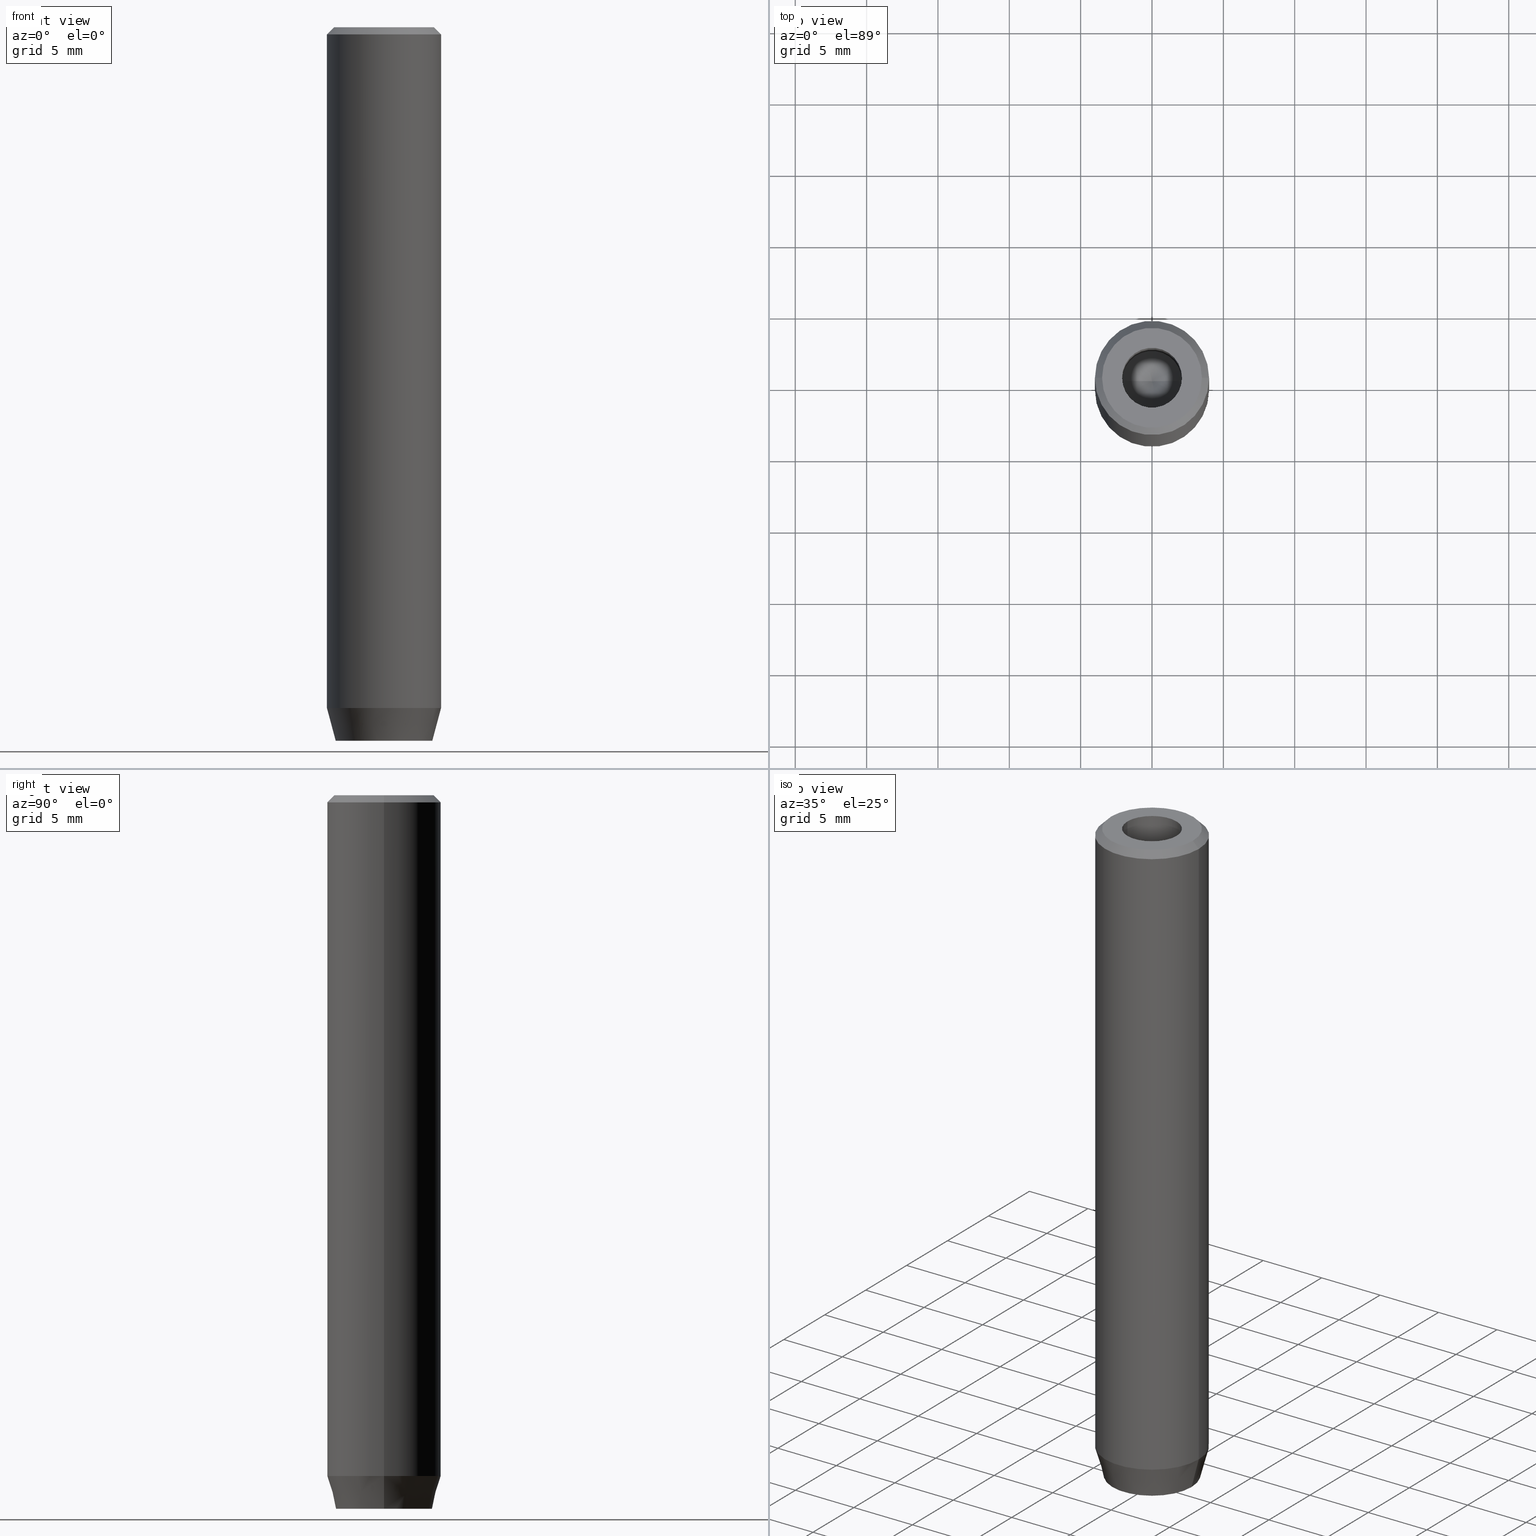
[diagram: canonical four-view strip — front | top / right | iso, engineering-drawing reading convention]
A machine part, canonical four-view strip (front | top / right | iso — engineering-drawing reading convention). The complete STEP part file that produces these views, byte-faithful:
ISO-10303-21;
HEADER;
FILE_DESCRIPTION (( 'STEP AP203' ),
    '1' );
FILE_NAME ('fa51.STEP',
    '2024-01-02T23:09:41',
    ( '' ),
    ( '' ),
    'SwSTEP 2.0',
    'SolidWorks 2019',
    '' );
FILE_SCHEMA (( 'CONFIG_CONTROL_DESIGN' ));
ENDSEC;

DATA;
#1 = SHAPE_DEFINITION_REPRESENTATION ( #333, #303 ) ;
#2 = AXIS2_PLACEMENT_3D ( 'NONE', #121, #310, #35 ) ;
#3 = CARTESIAN_POINT ( 'NONE',  ( 0.000000000000000000, 2.309401076758503812, -47.20000000000000284 ) ) ;
#4 = VECTOR ( 'NONE', #56, 1000.000000000000114 ) ;
#5 = ORIENTED_EDGE ( 'NONE', *, *, #295, .F. ) ;
#6 = DIRECTION ( 'NONE',  ( -0.000000000000000000, -0.000000000000000000, -1.000000000000000000 ) ) ;
#7 = VERTEX_POINT ( 'NONE', #245 ) ;
#8 = DATE_AND_TIME ( #511, #347 ) ;
#9 = DIRECTION ( 'NONE',  ( 0.8660254037844385966, -0.4999999999999999445, 0.000000000000000000 ) ) ;
#10 = ORIENTED_EDGE ( 'NONE', *, *, #457, .F. ) ;
#11 = PERSON_AND_ORGANIZATION ( #130, #546 ) ;
#12 = CARTESIAN_POINT ( 'NONE',  ( 4.000000000000000000, 0.000000000000000000, -47.70000000000000284 ) ) ;
#13 = VERTEX_POINT ( 'NONE', #345 ) ;
#14 = CIRCLE ( 'NONE', #214, 3.383716857408417766 ) ;
#15 = DIRECTION ( 'NONE',  ( -1.000000000000000000, 0.000000000000000000, -0.000000000000000000 ) ) ;
#16 = EDGE_CURVE ( 'NONE', #490, #292, #199, .T. ) ;
#17 = DIRECTION ( 'NONE',  ( -1.000000000000000000, 0.000000000000000000, -0.000000000000000000 ) ) ;
#18 = ORIENTED_EDGE ( 'NONE', *, *, #321, .F. ) ;
#19 = PLANE ( 'NONE',  #115 ) ;
#20 = ORIENTED_EDGE ( 'NONE', *, *, #447, .T. ) ;
#21 = VECTOR ( 'NONE', #408, 1000.000000000000000 ) ;
#22 = CARTESIAN_POINT ( 'NONE',  ( -2.099999999999998757, 2.571758278209439985E-16, -1.990051048614449116E-16 ) ) ;
#23 = ORIENTED_EDGE ( 'NONE', *, *, #143, .F. ) ;
#24 = DIRECTION ( 'NONE',  ( 0.000000000000000000, 0.000000000000000000, -1.000000000000000000 ) ) ;
#25 = ORIENTED_EDGE ( 'NONE', *, *, #252, .T. ) ;
#26 = ADVANCED_FACE ( 'NONE', ( #195 ), #564, .F. ) ;
#27 = APPROVAL_STATUS ( 'not_yet_approved' ) ;
#28 = ADVANCED_FACE ( 'NONE', ( #519 ), #258, .T. ) ;
#29 = DIRECTION ( 'NONE',  ( -5.633679745264339711E-16, -1.000000000000000000, 0.000000000000000000 ) ) ;
#30 = VECTOR ( 'NONE', #527, 1000.000000000000000 ) ;
#31 = DIRECTION ( 'NONE',  ( -0.000000000000000000, -0.000000000000000000, 1.000000000000000000 ) ) ;
#32 = CC_DESIGN_SECURITY_CLASSIFICATION ( #224, ( #374 ) ) ;
#33 = DIRECTION ( 'NONE',  ( -0.000000000000000000, -0.000000000000000000, 1.000000000000000000 ) ) ;
#34 = DIRECTION ( 'NONE',  ( -0.000000000000000000, -0.000000000000000000, 1.000000000000000000 ) ) ;
#35 = DIRECTION ( 'NONE',  ( 1.000000000000000000, 0.000000000000000000, 0.000000000000000000 ) ) ;
#36 = CARTESIAN_POINT ( 'NONE',  ( 0.000000000000000000, 0.000000000000000000, 0.000000000000000000 ) ) ;
#37 = ORIENTED_EDGE ( 'NONE', *, *, #304, .F. ) ;
#38 = EDGE_CURVE ( 'NONE', #292, #435, #440, .T. ) ;
#39 = CARTESIAN_POINT ( 'NONE',  ( 2.000000000000000888, -1.154700538379252572, -50.00000000000000000 ) ) ;
#40 = CONICAL_SURFACE ( 'NONE', #356, 2.099999999999996980, 1.029744258676653201 ) ;
#41 = LINE ( 'NONE', #211, #325 ) ;
#42 = AXIS2_PLACEMENT_3D ( 'NONE', #379, #250, #434 ) ;
#43 = EDGE_CURVE ( 'NONE', #251, #407, #489, .T. ) ;
#44 = CALENDAR_DATE ( 2024, 3, 1 ) ;
#45 = DIRECTION ( 'NONE',  ( -0.000000000000000000, -0.000000000000000000, -1.000000000000000000 ) ) ;
#46 = ORIENTED_EDGE ( 'NONE', *, *, #203, .F. ) ;
#47 = APPROVAL_STATUS ( 'not_yet_approved' ) ;
#48 = FACE_OUTER_BOUND ( 'NONE', #414, .T. ) ;
#49 = EDGE_CURVE ( 'NONE', #197, #475, #401, .T. ) ;
#50 = ORIENTED_EDGE ( 'NONE', *, *, #445, .F. ) ;
#51 = DIRECTION ( 'NONE',  ( -0.000000000000000000, -0.000000000000000000, 1.000000000000000000 ) ) ;
#52 = VECTOR ( 'NONE', #260, 1000.000000000000000 ) ;
#53 = ORIENTED_EDGE ( 'NONE', *, *, #583, .T. ) ;
#54 = APPROVAL_DATE_TIME ( #492, #189 ) ;
#55 = CARTESIAN_POINT ( 'NONE',  ( 0.000000000000000000, 0.000000000000000000, 0.000000000000000000 ) ) ;
#56 = DIRECTION ( 'NONE',  ( -0.8660254037844388186, -0.4999999999999996114, 0.000000000000000000 ) ) ;
#57 = EDGE_LOOP ( 'NONE', ( #430, #20, #65, #247 ) ) ;
#58 = ADVANCED_FACE ( 'NONE', ( #573 ), #207, .F. ) ;
#59 = DIRECTION ( 'NONE',  ( -0.000000000000000000, -0.000000000000000000, 1.000000000000000000 ) ) ;
#60 = ORIENTED_EDGE ( 'NONE', *, *, #203, .T. ) ;
#61 = AXIS2_PLACEMENT_3D ( 'NONE', #36, #496, #396 ) ;
#62 = AXIS2_PLACEMENT_3D ( 'NONE', #395, #354, #119 ) ;
#63 = CC_DESIGN_DATE_AND_TIME_ASSIGNMENT ( #8, #270, ( #224 ) ) ;
#64 = CARTESIAN_POINT ( 'NONE',  ( 1.000000000000000444, 1.732050807568877637, -50.00000000000000000 ) ) ;
#65 = ORIENTED_EDGE ( 'NONE', *, *, #219, .T. ) ;
#66 = FACE_OUTER_BOUND ( 'NONE', #75, .T. ) ;
#67 = EDGE_LOOP ( 'NONE', ( #254, #329, #343, #25 ) ) ;
#68 = PLANE ( 'NONE',  #500 ) ;
#69 = ORIENTED_EDGE ( 'NONE', *, *, #330, .F. ) ;
#70 = DIRECTION ( 'NONE',  ( -0.000000000000000000, -0.000000000000000000, 1.000000000000000000 ) ) ;
#71 = VERTEX_POINT ( 'NONE', #80 ) ;
#72 = EDGE_CURVE ( 'NONE', #185, #117, #534, .T. ) ;
#73 = EDGE_CURVE ( 'NONE', #213, #129, #570, .T. ) ;
#74 = APPLICATION_PROTOCOL_DEFINITION ( 'international standard', 'config_control_design', 1994, #478 ) ;
#75 = EDGE_LOOP ( 'NONE', ( #561, #340 ) ) ;
#76 = CARTESIAN_POINT ( 'NONE',  ( -1.000000000000000222, -1.732050807568877637, -50.00000000000000000 ) ) ;
#77 = LINE ( 'NONE', #312, #521 ) ;
#78 = CIRCLE ( 'NONE', #88, 4.000000000000000000 ) ;
#79 = DIRECTION ( 'NONE',  ( 1.000000000000000000, 0.000000000000000000, 0.000000000000000000 ) ) ;
#80 = CARTESIAN_POINT ( 'NONE',  ( 2.168404344971008868E-16, -2.309401076758503812, -50.00000000000000000 ) ) ;
#81 = ORIENTED_EDGE ( 'NONE', *, *, #283, .T. ) ;
#82 = PERSON_AND_ORGANIZATION ( #130, #546 ) ;
#83 = DIRECTION ( 'NONE',  ( 0.000000000000000000, -0.000000000000000000, 1.000000000000000000 ) ) ;
#84 = CARTESIAN_POINT ( 'NONE',  ( -4.000000000000000000, 4.898587196589412829E-16, -0.5000000000000108802 ) ) ;
#85 = PRODUCT_DEFINITION ( 'NEZN�M�', '', #374, #248 ) ;
#86 = AXIS2_PLACEMENT_3D ( 'NONE', #98, #91, #375 ) ;
#87 = DIRECTION ( 'NONE',  ( -0.2588190451025210725, 3.169619151431769255E-17, 0.9659258262890680902 ) ) ;
#88 = AXIS2_PLACEMENT_3D ( 'NONE', #429, #344, #110 ) ;
#89 = ORIENTED_EDGE ( 'NONE', *, *, #349, .T. ) ;
#90 = PERSON_AND_ORGANIZATION_ROLE ( 'design_supplier' ) ;
#91 = DIRECTION ( 'NONE',  ( 0.000000000000000000, 0.000000000000000000, -1.000000000000000000 ) ) ;
#92 = ORIENTED_EDGE ( 'NONE', *, *, #186, .T. ) ;
#93 = EDGE_CURVE ( 'NONE', #129, #475, #41, .T. ) ;
#94 = CYLINDRICAL_SURFACE ( 'NONE', #142, 2.099999999999997868 ) ;
#95 = FACE_OUTER_BOUND ( 'NONE', #516, .T. ) ;
#96 = AXIS2_PLACEMENT_3D ( 'NONE', #424, #386, #296 ) ;
#97 = VERTEX_POINT ( 'NONE', #267 ) ;
#98 = CARTESIAN_POINT ( 'NONE',  ( 0.000000000000000000, 0.000000000000000000, 0.000000000000000000 ) ) ;
#99 = ORIENTED_EDGE ( 'NONE', *, *, #509, .T. ) ;
#100 = EDGE_CURVE ( 'NONE', #484, #251, #77, .T. ) ;
#101 = CARTESIAN_POINT ( 'NONE',  ( -1.999999999999997780, 1.154700538379253238, -50.00000000000000000 ) ) ;
#102 = VERTEX_POINT ( 'NONE', #361 ) ;
#103 = CC_DESIGN_PERSON_AND_ORGANIZATION_ASSIGNMENT ( #183, #454, ( #374 ) ) ;
#104 = DIRECTION ( 'NONE',  ( -0.000000000000000000, -0.000000000000000000, 1.000000000000000000 ) ) ;
#105 = CARTESIAN_POINT ( 'NONE',  ( 0.000000000000000000, 0.000000000000000000, 0.000000000000000000 ) ) ;
#106 = CIRCLE ( 'NONE', #170, 4.000000000000000000 ) ;
#107 = AXIS2_PLACEMENT_3D ( 'NONE', #495, #31, #255 ) ;
#108 = DIRECTION ( 'NONE',  ( 1.000000000000000000, 0.000000000000000000, 0.000000000000000000 ) ) ;
#109 = EDGE_LOOP ( 'NONE', ( #223, #314, #420, #92, #542, #112 ) ) ;
#110 = DIRECTION ( 'NONE',  ( 1.000000000000000000, 0.000000000000000000, 0.000000000000000000 ) ) ;
#111 = EDGE_CURVE ( 'NONE', #251, #13, #131, .T. ) ;
#112 = ORIENTED_EDGE ( 'NONE', *, *, #43, .T. ) ;
#113 = FACE_BOUND ( 'NONE', #552, .T. ) ;
#114 = EDGE_LOOP ( 'NONE', ( #18, #157, #243, #10 ) ) ;
#115 = AXIS2_PLACEMENT_3D ( 'NONE', #565, #24, #15 ) ;
#116 = VECTOR ( 'NONE', #536, 1000.000000000000000 ) ;
#117 = VERTEX_POINT ( 'NONE', #84 ) ;
#118 = ADVANCED_FACE ( 'NONE', ( #172 ), #578, .F. ) ;
#119 = DIRECTION ( 'NONE',  ( 1.000000000000000000, 0.000000000000000000, 0.000000000000000000 ) ) ;
#120 = DIRECTION ( 'NONE',  ( -0.000000000000000000, 0.000000000000000000, -1.000000000000000000 ) ) ;
#121 = CARTESIAN_POINT ( 'NONE',  ( 0.000000000000000000, 0.000000000000000000, 0.000000000000000000 ) ) ;
#122 = CARTESIAN_POINT ( 'NONE',  ( -4.000000000000000000, 4.898587196589412829E-16, -47.70000000000000284 ) ) ;
#123 = VECTOR ( 'NONE', #523, 1000.000000000000000 ) ;
#124 = CARTESIAN_POINT ( 'NONE',  ( 0.000000000000000000, 0.000000000000000000, -47.70000000000000284 ) ) ;
#125 = ADVANCED_FACE ( 'NONE', ( #262 ), #210, .F. ) ;
#126 = FACE_BOUND ( 'NONE', #139, .T. ) ;
#127 = CARTESIAN_POINT ( 'NONE',  ( 2.168404344971008868E-16, -2.309401076758503812, -47.20000000000000284 ) ) ;
#128 = CARTESIAN_POINT ( 'NONE',  ( 2.000000000000000888, 0.000000000000000000, -50.00000000000000000 ) ) ;
#129 = VERTEX_POINT ( 'NONE', #315 ) ;
#130 = PERSON ( 'NEUR�EN�', 'NEUR�EN�', 'NEUR�EN�', ('NEUR�EN�'), ('NEUR�EN�'), ('NEUR�EN�') ) ;
#131 = LINE ( 'NONE', #498, #52 ) ;
#132 = PERSON_AND_ORGANIZATION ( #130, #546 ) ;
#133 = AXIS2_PLACEMENT_3D ( 'NONE', #464, #326, #222 ) ;
#134 = LINE ( 'NONE', #234, #432 ) ;
#135 = AXIS2_PLACEMENT_3D ( 'NONE', #124, #357, #488 ) ;
#136 = EDGE_LOOP ( 'NONE', ( #549, #332, #337, #46 ) ) ;
#137 = DIRECTION ( 'NONE',  ( -0.000000000000000000, -0.000000000000000000, 1.000000000000000000 ) ) ;
#138 = DIRECTION ( 'NONE',  ( -0.5000000000000001110, 0.8660254037844385966, 0.000000000000000000 ) ) ;
#139 = EDGE_LOOP ( 'NONE', ( #193, #240 ) ) ;
#140 = APPROVAL_DATE_TIME ( #405, #532 ) ;
#141 = DIRECTION ( 'NONE',  ( 0.2588190451025210725, 0.000000000000000000, 0.9659258262890680902 ) ) ;
#142 = AXIS2_PLACEMENT_3D ( 'NONE', #551, #51, #146 ) ;
#143 = EDGE_CURVE ( 'NONE', #7, #480, #306, .T. ) ;
#144 = VECTOR ( 'NONE', #263, 1000.000000000000000 ) ;
#145 = VERTEX_POINT ( 'NONE', #537 ) ;
#146 = DIRECTION ( 'NONE',  ( 1.000000000000000000, 0.000000000000000000, 0.000000000000000000 ) ) ;
#147 = ORIENTED_EDGE ( 'NONE', *, *, #382, .F. ) ;
#148 = CARTESIAN_POINT ( 'NONE',  ( -3.370670652075219192E-15, 0.000000000000000000, -13.76180729995787644 ) ) ;
#149 = ORIENTED_EDGE ( 'NONE', *, *, #445, .T. ) ;
#150 = FACE_OUTER_BOUND ( 'NONE', #109, .T. ) ;
#151 = LOCAL_TIME ( 0, 9, 41.00000000000000000, #277 ) ;
#152 = VERTEX_POINT ( 'NONE', #444 ) ;
#153 = VECTOR ( 'NONE', #355, 1000.000000000000000 ) ;
#154 = CARTESIAN_POINT ( 'NONE',  ( -3.499999999999989342, 0.000000000000000000, 0.000000000000000000 ) ) ;
#155 = CARTESIAN_POINT ( 'NONE',  ( 1.000000000000000444, 1.732050807568877637, -47.20000000000000284 ) ) ;
#156 = CARTESIAN_POINT ( 'NONE',  ( 0.000000000000000000, 0.000000000000000000, -47.70000000000000284 ) ) ;
#157 = ORIENTED_EDGE ( 'NONE', *, *, #93, .T. ) ;
#158 = CARTESIAN_POINT ( 'NONE',  ( 0.000000000000000000, 2.309401076758503812, -50.00000000000000000 ) ) ;
#159 = ORIENTED_EDGE ( 'NONE', *, *, #73, .T. ) ;
#160 = EDGE_CURVE ( 'NONE', #97, #185, #168, .T. ) ;
#161 = APPROVAL_PERSON_ORGANIZATION ( #82, #189, #571 ) ;
#162 = CALENDAR_DATE ( 2024, 3, 1 ) ;
#163 = CARTESIAN_POINT ( 'NONE',  ( 2.000000000000000888, 0.000000000000000000, -47.20000000000000284 ) ) ;
#164 = UNCERTAINTY_MEASURE_WITH_UNIT (LENGTH_MEASURE( 1.000000000000000082E-05 ), #299, 'distance_accuracy_value', 'NONE');
#165 = CC_DESIGN_PERSON_AND_ORGANIZATION_ASSIGNMENT ( #132, #502, ( #85 ) ) ;
#166 = DIRECTION ( 'NONE',  ( -0.000000000000000000, -0.000000000000000000, 1.000000000000000000 ) ) ;
#167 = EDGE_CURVE ( 'NONE', #97, #102, #14, .T. ) ;
#168 = LINE ( 'NONE', #122, #441 ) ;
#169 = EDGE_LOOP ( 'NONE', ( #53, #465, #280, #300 ) ) ;
#170 = AXIS2_PLACEMENT_3D ( 'NONE', #156, #70, #341 ) ;
#171 = CARTESIAN_POINT ( 'NONE',  ( 0.000000000000000000, 2.309401076758503812, -47.20000000000000284 ) ) ;
#172 = FACE_OUTER_BOUND ( 'NONE', #411, .T. ) ;
#173 = EDGE_CURVE ( 'NONE', #152, #557, #449, .T. ) ;
#174 = DIRECTION ( 'NONE',  ( 0.8660254037844388186, 0.4999999999999996669, 0.000000000000000000 ) ) ;
#175 = CARTESIAN_POINT ( 'NONE',  ( -1.999999999999998224, 1.126735949052866956E-15, -47.20000000000000284 ) ) ;
#176 = ADVANCED_FACE ( 'NONE', ( #126, #311 ), #494, .T. ) ;
#177 = DIRECTION ( 'NONE',  ( -0.000000000000000000, -0.000000000000000000, -1.000000000000000000 ) ) ;
#178 = CIRCLE ( 'NONE', #107, 3.383716857408417766 ) ;
#179 = COORDINATED_UNIVERSAL_TIME_OFFSET ( 1, 0, .AHEAD. ) ;
#180 = VECTOR ( 'NONE', #45, 1000.000000000000000 ) ;
#181 = LINE ( 'NONE', #554, #200 ) ;
#182 = ORIENTED_EDGE ( 'NONE', *, *, #283, .F. ) ;
#183 = PERSON_AND_ORGANIZATION ( #130, #546 ) ;
#184 = CARTESIAN_POINT ( 'NONE',  ( 0.9999999999999997780, -1.732050807568878747, -47.20000000000000284 ) ) ;
#185 = VERTEX_POINT ( 'NONE', #230 ) ;
#186 = EDGE_CURVE ( 'NONE', #435, #484, #556, .T. ) ;
#187 = CARTESIAN_POINT ( 'NONE',  ( 0.000000000000000000, 0.000000000000000000, -1.990051048614449116E-16 ) ) ;
#188 = DATE_AND_TIME ( #44, #289 ) ;
#189 = APPROVAL ( #27, 'NEUR�EN�' ) ;
#190 = FACE_OUTER_BOUND ( 'NONE', #57, .T. ) ;
#191 = CIRCLE ( 'NONE', #581, 2.099999999999996980 ) ;
#192 = AXIS2_PLACEMENT_3D ( 'NONE', #529, #204, #108 ) ;
#193 = ORIENTED_EDGE ( 'NONE', *, *, #436, .F. ) ;
#194 = DIRECTION ( 'NONE',  ( 1.000000000000000000, 0.000000000000000000, 0.000000000000000000 ) ) ;
#195 = FACE_OUTER_BOUND ( 'NONE', #67, .T. ) ;
#196 = FACE_OUTER_BOUND ( 'NONE', #282, .T. ) ;
#197 = VERTEX_POINT ( 'NONE', #12 ) ;
#198 = CYLINDRICAL_SURFACE ( 'NONE', #42, 4.000000000000000000 ) ;
#199 = LINE ( 'NONE', #531, #225 ) ;
#200 = VECTOR ( 'NONE', #141, 1000.000000000000114 ) ;
#201 = DIRECTION ( 'NONE',  ( 0.4999999999999996669, -0.8660254037844388186, 0.000000000000000000 ) ) ;
#202 = ORIENTED_EDGE ( 'NONE', *, *, #38, .F. ) ;
#203 = EDGE_CURVE ( 'NONE', #102, #197, #181, .T. ) ;
#204 = DIRECTION ( 'NONE',  ( -0.000000000000000000, -0.000000000000000000, 1.000000000000000000 ) ) ;
#205 = ORIENTED_EDGE ( 'NONE', *, *, #447, .F. ) ;
#206 = LINE ( 'NONE', #448, #116 ) ;
#207 = PLANE ( 'NONE',  #335 ) ;
#208 = AXIS2_PLACEMENT_3D ( 'NONE', #253, #209, #79 ) ;
#209 = DIRECTION ( 'NONE',  ( -0.000000000000000000, -0.000000000000000000, 1.000000000000000000 ) ) ;
#210 = PLANE ( 'NONE',  #238 ) ;
#211 = CARTESIAN_POINT ( 'NONE',  ( 3.499999999999989342, 4.286263797015722790E-16, 0.000000000000000000 ) ) ;
#212 = DIRECTION ( 'NONE',  ( -0.000000000000000000, -0.000000000000000000, 1.000000000000000000 ) ) ;
#213 = VERTEX_POINT ( 'NONE', #371 ) ;
#214 = AXIS2_PLACEMENT_3D ( 'NONE', #538, #34, #398 ) ;
#215 = APPROVAL_PERSON_ORGANIZATION ( #547, #532, #507 ) ;
#216 = CARTESIAN_POINT ( 'NONE',  ( 2.000000000000000888, 1.154700538379251462, -47.20000000000000284 ) ) ;
#217 = DIRECTION ( 'NONE',  ( -0.8660254037844387076, 0.5000000000000001110, 0.000000000000000000 ) ) ;
#218 = PERSON_AND_ORGANIZATION_ROLE ( 'classification_officer' ) ;
#219 = EDGE_CURVE ( 'NONE', #370, #557, #402, .T. ) ;
#220 = DIRECTION ( 'NONE',  ( 1.000000000000000000, 0.000000000000000000, 0.000000000000000000 ) ) ;
#221 = ORIENTED_EDGE ( 'NONE', *, *, #265, .F. ) ;
#222 = DIRECTION ( 'NONE',  ( 1.000000000000000000, 0.000000000000000000, 0.000000000000000000 ) ) ;
#223 = ORIENTED_EDGE ( 'NONE', *, *, #295, .T. ) ;
#224 = SECURITY_CLASSIFICATION ( '', '', #273 ) ;
#225 = VECTOR ( 'NONE', #385, 1000.000000000000000 ) ;
#226 = DIRECTION ( 'NONE',  ( 5.633679745264339711E-16, 1.000000000000000000, 0.000000000000000000 ) ) ;
#227 = EDGE_LOOP ( 'NONE', ( #486, #545, #504 ) ) ;
#228 = ADVANCED_FACE ( 'NONE', ( #95 ), #510, .T. ) ;
#229 = PERSON_AND_ORGANIZATION ( #130, #546 ) ;
#230 = CARTESIAN_POINT ( 'NONE',  ( -4.000000000000000000, 4.898587196589412829E-16, -47.70000000000000284 ) ) ;
#231 = ORIENTED_EDGE ( 'NONE', *, *, #49, .T. ) ;
#232 = ADVANCED_FACE ( 'NONE', ( #514 ), #316, .T. ) ;
#233 = DATE_AND_TIME ( #585, #151 ) ;
#234 = CARTESIAN_POINT ( 'NONE',  ( -1.000000000000000444, 1.732050807568877637, -47.20000000000000284 ) ) ;
#235 = ORIENTED_EDGE ( 'NONE', *, *, #304, .T. ) ;
#236 = ADVANCED_FACE ( 'NONE', ( #190 ), #94, .F. ) ;
#237 = CARTESIAN_POINT ( 'NONE',  ( 0.000000000000000000, 0.000000000000000000, -12.50000000000000000 ) ) ;
#238 = AXIS2_PLACEMENT_3D ( 'NONE', #359, #541, #29 ) ;
#239 = VECTOR ( 'NONE', #59, 1000.000000000000000 ) ;
#240 = ORIENTED_EDGE ( 'NONE', *, *, #219, .F. ) ;
#241 = APPLICATION_CONTEXT ( 'configuration controlled 3d designs of mechanical parts and assemblies' ) ;
#242 = FACE_OUTER_BOUND ( 'NONE', #462, .T. ) ;
#243 = ORIENTED_EDGE ( 'NONE', *, *, #380, .F. ) ;
#244 = DIRECTION ( 'NONE',  ( 1.000000000000000000, 0.000000000000000000, 0.000000000000000000 ) ) ;
#245 = CARTESIAN_POINT ( 'NONE',  ( 2.000000000000000888, 1.154700538379251462, -50.00000000000000000 ) ) ;
#246 = CARTESIAN_POINT ( 'NONE',  ( 2.000000000000000888, -1.154700538379252572, -47.20000000000000284 ) ) ;
#247 = ORIENTED_EDGE ( 'NONE', *, *, #173, .F. ) ;
#248 = DESIGN_CONTEXT ( 'detailed design', #478, 'design' ) ;
#249 = VECTOR ( 'NONE', #226, 1000.000000000000000 ) ;
#250 = DIRECTION ( 'NONE',  ( -0.000000000000000000, -0.000000000000000000, 1.000000000000000000 ) ) ;
#251 = VERTEX_POINT ( 'NONE', #512 ) ;
#252 = EDGE_CURVE ( 'NONE', #490, #437, #274, .T. ) ;
#253 = CARTESIAN_POINT ( 'NONE',  ( 0.000000000000000000, 0.000000000000000000, -47.70000000000000284 ) ) ;
#254 = ORIENTED_EDGE ( 'NONE', *, *, #358, .T. ) ;
#255 = DIRECTION ( 'NONE',  ( 1.000000000000000000, 0.000000000000000000, 0.000000000000000000 ) ) ;
#256 = CARTESIAN_POINT ( 'NONE',  ( 0.000000000000000000, 0.000000000000000000, 0.000000000000000000 ) ) ;
#257 =( GEOMETRIC_REPRESENTATION_CONTEXT ( 3 ) GLOBAL_UNCERTAINTY_ASSIGNED_CONTEXT ( ( #164 ) ) GLOBAL_UNIT_ASSIGNED_CONTEXT ( ( #299, #352, #350 ) ) REPRESENTATION_CONTEXT ( 'NONE', 'WORKASPACE' ) );
#258 = CONICAL_SURFACE ( 'NONE', #472, 3.499999999999989342, 0.7853981633974482790 ) ;
#259 = DIRECTION ( 'NONE',  ( -0.8571673007021116675, 1.049727191138617833E-16, 0.5150380749100552658 ) ) ;
#260 = DIRECTION ( 'NONE',  ( -0.000000000000000000, -0.000000000000000000, -1.000000000000000000 ) ) ;
#261 = DIRECTION ( 'NONE',  ( -0.8660254037844387076, 0.5000000000000001110, 0.000000000000000000 ) ) ;
#262 = FACE_OUTER_BOUND ( 'NONE', #389, .T. ) ;
#263 = DIRECTION ( 'NONE',  ( 0.000000000000000000, -1.000000000000000000, 0.000000000000000000 ) ) ;
#264 = ORIENTED_EDGE ( 'NONE', *, *, #457, .T. ) ;
#265 = EDGE_CURVE ( 'NONE', #451, #152, #461, .T. ) ;
#266 = CIRCLE ( 'NONE', #438, 2.099999999999998757 ) ;
#267 = CARTESIAN_POINT ( 'NONE',  ( -3.383716857408417766, 4.521222607617785469E-16, -50.00000000000000000 ) ) ;
#268 = ORIENTED_EDGE ( 'NONE', *, *, #380, .T. ) ;
#269 = ADVANCED_FACE ( 'NONE', ( #48 ), #328, .F. ) ;
#270 = DATE_TIME_ROLE ( 'classification_date' ) ;
#271 = DIRECTION ( 'NONE',  ( -0.8660254037844388186, -0.4999999999999996114, 0.000000000000000000 ) ) ;
#272 = ORIENTED_EDGE ( 'NONE', *, *, #111, .T. ) ;
#273 = SECURITY_CLASSIFICATION_LEVEL ( 'unclassified' ) ;
#274 = LINE ( 'NONE', #3, #180 ) ;
#275 = EDGE_CURVE ( 'NONE', #13, #285, #369, .T. ) ;
#276 = ORIENTED_EDGE ( 'NONE', *, *, #186, .F. ) ;
#277 = COORDINATED_UNIVERSAL_TIME_OFFSET ( 1, 0, .AHEAD. ) ;
#278 = VECTOR ( 'NONE', #446, 1000.000000000000000 ) ;
#279 = DIRECTION ( 'NONE',  ( 0.8660254037844385966, 0.5000000000000001110, 0.000000000000000000 ) ) ;
#280 = ORIENTED_EDGE ( 'NONE', *, *, #100, .F. ) ;
#281 = DIRECTION ( 'NONE',  ( -0.8660254037844385966, -0.5000000000000001110, 0.000000000000000000 ) ) ;
#282 = EDGE_LOOP ( 'NONE', ( #569, #89, #231, #149 ) ) ;
#283 = EDGE_CURVE ( 'NONE', #480, #71, #406, .T. ) ;
#284 = LINE ( 'NONE', #469, #239 ) ;
#285 = VERTEX_POINT ( 'NONE', #101 ) ;
#286 = VECTOR ( 'NONE', #259, 1000.000000000000000 ) ;
#287 = LINE ( 'NONE', #64, #30 ) ;
#288 = VECTOR ( 'NONE', #271, 1000.000000000000114 ) ;
#289 = LOCAL_TIME ( 0, 9, 41.00000000000000000, #324 ) ;
#290 = DIRECTION ( 'NONE',  ( 0.000000000000000000, 0.000000000000000000, -1.000000000000000000 ) ) ;
#291 = LINE ( 'NONE', #154, #367 ) ;
#292 = VERTEX_POINT ( 'NONE', #419 ) ;
#293 = DIRECTION ( 'NONE',  ( -0.7071067811865474617, 0.000000000000000000, -0.7071067811865474617 ) ) ;
#294 = ORIENTED_EDGE ( 'NONE', *, *, #73, .F. ) ;
#295 = EDGE_CURVE ( 'NONE', #407, #490, #134, .T. ) ;
#296 = DIRECTION ( 'NONE',  ( 1.000000000000000000, 0.000000000000000000, 0.000000000000000000 ) ) ;
#297 = ORIENTED_EDGE ( 'NONE', *, *, #487, .T. ) ;
#298 = AXIS2_PLACEMENT_3D ( 'NONE', #55, #137, #373 ) ;
#299 =( LENGTH_UNIT ( ) NAMED_UNIT ( * ) SI_UNIT ( .MILLI., .METRE. ) );
#300 = ORIENTED_EDGE ( 'NONE', *, *, #330, .T. ) ;
#301 = APPLICATION_PROTOCOL_DEFINITION ( 'international standard', 'config_control_design', 1994, #241 ) ;
#302 = DIRECTION ( 'NONE',  ( 0.7071067811865474617, 8.659560562354932858E-17, -0.7071067811865474617 ) ) ;
#303 = ADVANCED_BREP_SHAPE_REPRESENTATION ( 'fa51', ( #348, #2 ), #257 ) ;
#304 = EDGE_CURVE ( 'NONE', #407, #285, #455, .T. ) ;
#305 = PERSON_AND_ORGANIZATION_ROLE ( 'design_owner' ) ;
#306 = LINE ( 'NONE', #128, #144 ) ;
#307 = ORIENTED_EDGE ( 'NONE', *, *, #167, .T. ) ;
#308 = VECTOR ( 'NONE', #6, 1000.000000000000000 ) ;
#309 = CC_DESIGN_APPROVAL ( #189, ( #85 ) ) ;
#310 = DIRECTION ( 'NONE',  ( 0.000000000000000000, 0.000000000000000000, 1.000000000000000000 ) ) ;
#311 = FACE_OUTER_BOUND ( 'NONE', #459, .T. ) ;
#312 = CARTESIAN_POINT ( 'NONE',  ( -1.000000000000000222, -1.732050807568877637, -47.20000000000000284 ) ) ;
#313 = ADVANCED_FACE ( 'NONE', ( #364 ), #317, .F. ) ;
#314 = ORIENTED_EDGE ( 'NONE', *, *, #16, .T. ) ;
#315 = CARTESIAN_POINT ( 'NONE',  ( 3.499999999999989342, 4.592425496802568056E-16, 0.000000000000000000 ) ) ;
#316 = CONICAL_SURFACE ( 'NONE', #133, 4.000000000000000000, 0.2617993877991497964 ) ;
#317 = PLANE ( 'NONE',  #450 ) ;
#318 = ORIENTED_EDGE ( 'NONE', *, *, #49, .F. ) ;
#319 = CARTESIAN_POINT ( 'NONE',  ( -1.999999999999998224, 1.126735949052866956E-15, -50.00000000000000000 ) ) ;
#320 = ORIENTED_EDGE ( 'NONE', *, *, #43, .F. ) ;
#321 = EDGE_CURVE ( 'NONE', #129, #213, #384, .T. ) ;
#322 = FACE_OUTER_BOUND ( 'NONE', #227, .T. ) ;
#323 = ORIENTED_EDGE ( 'NONE', *, *, #550, .T. ) ;
#324 = COORDINATED_UNIVERSAL_TIME_OFFSET ( 1, 0, .AHEAD. ) ;
#325 = VECTOR ( 'NONE', #302, 1000.000000000000114 ) ;
#326 = DIRECTION ( 'NONE',  ( -0.000000000000000000, -0.000000000000000000, 1.000000000000000000 ) ) ;
#327 = ORIENTED_EDGE ( 'NONE', *, *, #517, .T. ) ;
#328 = PLANE ( 'NONE',  #481 ) ;
#329 = ORIENTED_EDGE ( 'NONE', *, *, #550, .F. ) ;
#330 = EDGE_CURVE ( 'NONE', #484, #71, #505, .T. ) ;
#331 = FACE_OUTER_BOUND ( 'NONE', #506, .T. ) ;
#332 = ORIENTED_EDGE ( 'NONE', *, *, #160, .T. ) ;
#333 = PRODUCT_DEFINITION_SHAPE ( 'NONE', 'NONE',  #85 ) ;
#334 = DIRECTION ( 'NONE',  ( 1.000000000000000000, 0.000000000000000000, 0.000000000000000000 ) ) ;
#335 = AXIS2_PLACEMENT_3D ( 'NONE', #163, #351, #120 ) ;
#336 = VECTOR ( 'NONE', #261, 999.9999999999998863 ) ;
#337 = ORIENTED_EDGE ( 'NONE', *, *, #517, .F. ) ;
#338 = ADVANCED_FACE ( 'NONE', ( #322 ), #40, .F. ) ;
#339 = LINE ( 'NONE', #246, #123 ) ;
#340 = ORIENTED_EDGE ( 'NONE', *, *, #167, .F. ) ;
#341 = DIRECTION ( 'NONE',  ( 1.000000000000000000, 0.000000000000000000, 0.000000000000000000 ) ) ;
#342 = ADVANCED_FACE ( 'NONE', ( #150 ), #19, .T. ) ;
#343 = ORIENTED_EDGE ( 'NONE', *, *, #16, .F. ) ;
#344 = DIRECTION ( 'NONE',  ( 0.000000000000000000, 0.000000000000000000, -1.000000000000000000 ) ) ;
#345 = CARTESIAN_POINT ( 'NONE',  ( -1.999999999999998668, -1.154700538379252572, -50.00000000000000000 ) ) ;
#346 = CLOSED_SHELL ( 'NONE', ( #236, #393, #28, #574, #452, #404, #176, #399, #232, #228, #269, #125, #313, #471, #58, #26, #342, #338, #118 ) ) ;
#347 = LOCAL_TIME ( 0, 9, 41.00000000000000000, #179 ) ;
#348 = MANIFOLD_SOLID_BREP ( 'Vrt�k z�vitn�ku pro M5 z�vit1', #346 ) ;
#349 = EDGE_CURVE ( 'NONE', #185, #197, #106, .T. ) ;
#350 =( NAMED_UNIT ( * ) SI_UNIT ( $, .STERADIAN. ) SOLID_ANGLE_UNIT ( ) );
#351 = DIRECTION ( 'NONE',  ( 1.000000000000000000, 0.000000000000000000, -0.000000000000000000 ) ) ;
#352 =( NAMED_UNIT ( * ) PLANE_ANGLE_UNIT ( ) SI_UNIT ( $, .RADIAN. ) );
#353 = DIRECTION ( 'NONE',  ( 1.000000000000000000, 0.000000000000000000, 0.000000000000000000 ) ) ;
#354 = DIRECTION ( 'NONE',  ( -0.000000000000000000, -0.000000000000000000, 1.000000000000000000 ) ) ;
#355 = DIRECTION ( 'NONE',  ( -0.000000000000000000, -0.000000000000000000, 1.000000000000000000 ) ) ;
#356 = AXIS2_PLACEMENT_3D ( 'NONE', #237, #558, #476 ) ;
#357 = DIRECTION ( 'NONE',  ( -0.000000000000000000, -0.000000000000000000, 1.000000000000000000 ) ) ;
#358 = EDGE_CURVE ( 'NONE', #437, #7, #287, .T. ) ;
#359 = CARTESIAN_POINT ( 'NONE',  ( -1.999999999999998224, 1.126735949052866956E-15, -47.20000000000000284 ) ) ;
#360 = CARTESIAN_POINT ( 'NONE',  ( 2.099999999999998757, 0.000000000000000000, -1.990051048614449116E-16 ) ) ;
#361 = CARTESIAN_POINT ( 'NONE',  ( 3.383716857408417766, 0.000000000000000000, -50.00000000000000000 ) ) ;
#362 = CC_DESIGN_PERSON_AND_ORGANIZATION_ASSIGNMENT ( #497, #218, ( #224 ) ) ;
#363 = EDGE_CURVE ( 'NONE', #435, #480, #339, .T. ) ;
#364 = FACE_OUTER_BOUND ( 'NONE', #169, .T. ) ;
#365 = ORIENTED_EDGE ( 'NONE', *, *, #349, .F. ) ;
#366 = CONICAL_SURFACE ( 'NONE', #192, 2.099999999999996980, 1.029744258676653201 ) ;
#367 = VECTOR ( 'NONE', #293, 1000.000000000000114 ) ;
#368 = DATE_TIME_ROLE ( 'creation_date' ) ;
#369 = LINE ( 'NONE', #319, #249 ) ;
#370 = VERTEX_POINT ( 'NONE', #22 ) ;
#371 = CARTESIAN_POINT ( 'NONE',  ( -3.499999999999989342, 0.000000000000000000, 0.000000000000000000 ) ) ;
#372 = ORIENTED_EDGE ( 'NONE', *, *, #515, .T. ) ;
#373 = DIRECTION ( 'NONE',  ( 1.000000000000000000, 0.000000000000000000, 0.000000000000000000 ) ) ;
#374 = PRODUCT_DEFINITION_FORMATION_WITH_SPECIFIED_SOURCE ( 'LIBOVOLN�', '', #426, .NOT_KNOWN. ) ;
#375 = DIRECTION ( 'NONE',  ( -1.000000000000000000, 0.000000000000000000, 0.000000000000000000 ) ) ;
#376 = EDGE_LOOP ( 'NONE', ( #417, #307, #60, #365 ) ) ;
#377 = DIRECTION ( 'NONE',  ( 0.000000000000000000, 0.000000000000000000, -1.000000000000000000 ) ) ;
#378 = DIRECTION ( 'NONE',  ( 0.5000000000000001110, 0.8660254037844385966, -0.000000000000000000 ) ) ;
#379 = CARTESIAN_POINT ( 'NONE',  ( 0.000000000000000000, 0.000000000000000000, 0.000000000000000000 ) ) ;
#380 = EDGE_CURVE ( 'NONE', #117, #475, #392, .T. ) ;
#381 = ORIENTED_EDGE ( 'NONE', *, *, #275, .T. ) ;
#382 = EDGE_CURVE ( 'NONE', #152, #145, #191, .T. ) ;
#383 = CARTESIAN_POINT ( 'NONE',  ( 2.000000000000000888, -1.154700538379252572, -47.20000000000000284 ) ) ;
#384 = CIRCLE ( 'NONE', #298, 3.499999999999989342 ) ;
#385 = DIRECTION ( 'NONE',  ( 0.8660254037844385966, -0.5000000000000001110, 0.000000000000000000 ) ) ;
#386 = DIRECTION ( 'NONE',  ( 0.000000000000000000, 0.000000000000000000, -1.000000000000000000 ) ) ;
#387 = ORIENTED_EDGE ( 'NONE', *, *, #321, .T. ) ;
#388 = PLANE ( 'NONE',  #530 ) ;
#389 = EDGE_LOOP ( 'NONE', ( #381, #37, #320, #272 ) ) ;
#390 = MECHANICAL_CONTEXT ( 'NONE', #241, 'mechanical' ) ;
#391 = CARTESIAN_POINT ( 'NONE',  ( 2.000000000000000888, 0.000000000000000000, -47.20000000000000284 ) ) ;
#392 = CIRCLE ( 'NONE', #96, 4.000000000000000000 ) ;
#393 = ADVANCED_FACE ( 'NONE', ( #242 ), #366, .F. ) ;
#394 = CIRCLE ( 'NONE', #135, 4.000000000000000000 ) ;
#395 = CARTESIAN_POINT ( 'NONE',  ( 0.000000000000000000, 0.000000000000000000, -12.50000000000000000 ) ) ;
#396 = DIRECTION ( 'NONE',  ( 1.000000000000000000, 0.000000000000000000, 0.000000000000000000 ) ) ;
#397 = DIRECTION ( 'NONE',  ( -0.000000000000000000, -0.000000000000000000, -1.000000000000000000 ) ) ;
#398 = DIRECTION ( 'NONE',  ( 1.000000000000000000, 0.000000000000000000, 0.000000000000000000 ) ) ;
#399 = ADVANCED_FACE ( 'NONE', ( #196 ), #198, .T. ) ;
#400 = COORDINATED_UNIVERSAL_TIME_OFFSET ( 1, 0, .AHEAD. ) ;
#401 = LINE ( 'NONE', #403, #539 ) ;
#402 = CIRCLE ( 'NONE', #483, 2.099999999999998757 ) ;
#403 = CARTESIAN_POINT ( 'NONE',  ( 4.000000000000000000, 0.000000000000000000, 0.000000000000000000 ) ) ;
#404 = ADVANCED_FACE ( 'NONE', ( #113, #66 ), #388, .T. ) ;
#405 = DATE_AND_TIME ( #456, #453 ) ;
#406 = LINE ( 'NONE', #466, #4 ) ;
#407 = VERTEX_POINT ( 'NONE', #427 ) ;
#408 = DIRECTION ( 'NONE',  ( 0.8571673007021116675, 0.000000000000000000, 0.5150380749100552658 ) ) ;
#409 = CC_DESIGN_PERSON_AND_ORGANIZATION_ASSIGNMENT ( #485, #305, ( #426 ) ) ;
#410 = LOCAL_TIME ( 0, 9, 41.00000000000000000, #400 ) ;
#411 = EDGE_LOOP ( 'NONE', ( #205, #147, #428, #477 ) ) ;
#412 = VECTOR ( 'NONE', #212, 1000.000000000000000 ) ;
#413 = CARTESIAN_POINT ( 'NONE',  ( 2.168404344971008868E-16, -2.309401076758503812, -47.20000000000000284 ) ) ;
#414 = EDGE_LOOP ( 'NONE', ( #99, #433, #5, #235 ) ) ;
#415 = APPROVAL_STATUS ( 'not_yet_approved' ) ;
#416 = DIRECTION ( 'NONE',  ( 1.000000000000000000, 0.000000000000000000, 0.000000000000000000 ) ) ;
#417 = ORIENTED_EDGE ( 'NONE', *, *, #160, .F. ) ;
#418 = APPROVAL_DATE_TIME ( #188, #568 ) ;
#419 = CARTESIAN_POINT ( 'NONE',  ( 2.000000000000000888, 1.154700538379251462, -47.20000000000000284 ) ) ;
#420 = ORIENTED_EDGE ( 'NONE', *, *, #38, .T. ) ;
#421 = AXIS2_PLACEMENT_3D ( 'NONE', #256, #33, #353 ) ;
#422 = APPROVAL_PERSON_ORGANIZATION ( #229, #568, #553 ) ;
#423 = PRODUCT_RELATED_PRODUCT_CATEGORY ( 'detail', '', ( #426 ) ) ;
#424 = CARTESIAN_POINT ( 'NONE',  ( 0.000000000000000000, 0.000000000000000000, -0.5000000000000108802 ) ) ;
#425 = ORIENTED_EDGE ( 'NONE', *, *, #509, .F. ) ;
#426 = PRODUCT ( 'fa51', 'fa51', '', ( #390 ) ) ;
#427 = CARTESIAN_POINT ( 'NONE',  ( -1.999999999999997780, 1.154700538379253238, -47.20000000000000284 ) ) ;
#428 = ORIENTED_EDGE ( 'NONE', *, *, #173, .T. ) ;
#429 = CARTESIAN_POINT ( 'NONE',  ( 0.000000000000000000, 0.000000000000000000, -0.5000000000000108802 ) ) ;
#430 = ORIENTED_EDGE ( 'NONE', *, *, #487, .F. ) ;
#431 = CARTESIAN_POINT ( 'NONE',  ( 0.9999999999999997780, -1.732050807568878747, -47.20000000000000284 ) ) ;
#432 = VECTOR ( 'NONE', #279, 1000.000000000000000 ) ;
#433 = ORIENTED_EDGE ( 'NONE', *, *, #252, .F. ) ;
#434 = DIRECTION ( 'NONE',  ( 1.000000000000000000, 0.000000000000000000, 0.000000000000000000 ) ) ;
#435 = VERTEX_POINT ( 'NONE', #383 ) ;
#436 = EDGE_CURVE ( 'NONE', #557, #370, #266, .T. ) ;
#437 = VERTEX_POINT ( 'NONE', #158 ) ;
#438 = AXIS2_PLACEMENT_3D ( 'NONE', #525, #560, #244 ) ;
#439 = FACE_OUTER_BOUND ( 'NONE', #136, .T. ) ;
#440 = LINE ( 'NONE', #391, #463 ) ;
#441 = VECTOR ( 'NONE', #87, 1000.000000000000114 ) ;
#442 = CC_DESIGN_APPROVAL ( #532, ( #224 ) ) ;
#443 = LINE ( 'NONE', #577, #286 ) ;
#444 = CARTESIAN_POINT ( 'NONE',  ( 2.099999999999996980, 0.000000000000000000, -12.50000000000000000 ) ) ;
#445 = EDGE_CURVE ( 'NONE', #475, #117, #78, .T. ) ;
#446 = DIRECTION ( 'NONE',  ( 5.633679745264339711E-16, 1.000000000000000000, 0.000000000000000000 ) ) ;
#447 = EDGE_CURVE ( 'NONE', #145, #370, #284, .T. ) ;
#448 = CARTESIAN_POINT ( 'NONE',  ( -1.000000000000000444, 1.732050807568877637, -50.00000000000000000 ) ) ;
#449 = LINE ( 'NONE', #575, #412 ) ;
#450 = AXIS2_PLACEMENT_3D ( 'NONE', #586, #503, #9 ) ;
#451 = VERTEX_POINT ( 'NONE', #148 ) ;
#452 = ADVANCED_FACE ( 'NONE', ( #331 ), #518, .T. ) ;
#453 = LOCAL_TIME ( 0, 9, 41.00000000000000000, #460 ) ;
#454 = PERSON_AND_ORGANIZATION_ROLE ( 'creator' ) ;
#455 = LINE ( 'NONE', #544, #555 ) ;
#456 = CALENDAR_DATE ( 2024, 3, 1 ) ;
#457 = EDGE_CURVE ( 'NONE', #213, #117, #291, .T. ) ;
#458 = CARTESIAN_POINT ( 'NONE',  ( 2.099999999999996980, 0.000000000000000000, -12.50000000000000000 ) ) ;
#459 = EDGE_LOOP ( 'NONE', ( #159, #387 ) ) ;
#460 = COORDINATED_UNIVERSAL_TIME_OFFSET ( 1, 0, .AHEAD. ) ;
#461 = LINE ( 'NONE', #458, #21 ) ;
#462 = EDGE_LOOP ( 'NONE', ( #221, #372, #297 ) ) ;
#463 = VECTOR ( 'NONE', #493, 1000.000000000000000 ) ;
#464 = CARTESIAN_POINT ( 'NONE',  ( 0.000000000000000000, 0.000000000000000000, -47.70000000000000284 ) ) ;
#465 = ORIENTED_EDGE ( 'NONE', *, *, #111, .F. ) ;
#466 = CARTESIAN_POINT ( 'NONE',  ( 0.9999999999999997780, -1.732050807568878747, -50.00000000000000000 ) ) ;
#467 = ORIENTED_EDGE ( 'NONE', *, *, #275, .F. ) ;
#468 = CC_DESIGN_PERSON_AND_ORGANIZATION_ASSIGNMENT ( #11, #90, ( #374 ) ) ;
#469 = CARTESIAN_POINT ( 'NONE',  ( -2.099999999999997868, 2.571758278209438999E-16, 0.000000000000000000 ) ) ;
#470 = ORIENTED_EDGE ( 'NONE', *, *, #72, .T. ) ;
#471 = ADVANCED_FACE ( 'NONE', ( #479 ), #68, .F. ) ;
#472 = AXIS2_PLACEMENT_3D ( 'NONE', #105, #290, #543 ) ;
#473 = CIRCLE ( 'NONE', #62, 2.099999999999996980 ) ;
#474 = DIRECTION ( 'NONE',  ( -0.000000000000000000, -0.000000000000000000, 1.000000000000000000 ) ) ;
#475 = VERTEX_POINT ( 'NONE', #579 ) ;
#476 = DIRECTION ( 'NONE',  ( 1.000000000000000000, 0.000000000000000000, 0.000000000000000000 ) ) ;
#477 = ORIENTED_EDGE ( 'NONE', *, *, #436, .T. ) ;
#478 = APPLICATION_CONTEXT ( 'configuration controlled 3d designs of mechanical parts and assemblies' ) ;
#479 = FACE_OUTER_BOUND ( 'NONE', #526, .T. ) ;
#480 = VERTEX_POINT ( 'NONE', #39 ) ;
#481 = AXIS2_PLACEMENT_3D ( 'NONE', #508, #138, #281 ) ;
#482 = CARTESIAN_POINT ( 'NONE',  ( 0.000000000000000000, 0.000000000000000000, -12.50000000000000000 ) ) ;
#483 = AXIS2_PLACEMENT_3D ( 'NONE', #187, #548, #416 ) ;
#484 = VERTEX_POINT ( 'NONE', #127 ) ;
#485 = PERSON_AND_ORGANIZATION ( #130, #546 ) ;
#486 = ORIENTED_EDGE ( 'NONE', *, *, #515, .F. ) ;
#487 = EDGE_CURVE ( 'NONE', #145, #152, #473, .T. ) ;
#488 = DIRECTION ( 'NONE',  ( 1.000000000000000000, 0.000000000000000000, 0.000000000000000000 ) ) ;
#489 = LINE ( 'NONE', #175, #278 ) ;
#490 = VERTEX_POINT ( 'NONE', #171 ) ;
#491 = CC_DESIGN_APPROVAL ( #568, ( #374 ) ) ;
#492 = DATE_AND_TIME ( #162, #410 ) ;
#493 = DIRECTION ( 'NONE',  ( 0.000000000000000000, -1.000000000000000000, 0.000000000000000000 ) ) ;
#494 = PLANE ( 'NONE',  #562 ) ;
#495 = CARTESIAN_POINT ( 'NONE',  ( 0.000000000000000000, 0.000000000000000000, -50.00000000000000000 ) ) ;
#496 = DIRECTION ( 'NONE',  ( -0.000000000000000000, -0.000000000000000000, 1.000000000000000000 ) ) ;
#497 = PERSON_AND_ORGANIZATION ( #130, #546 ) ;
#498 = CARTESIAN_POINT ( 'NONE',  ( -1.999999999999998668, -1.154700538379252572, -47.20000000000000284 ) ) ;
#499 = AXIS2_PLACEMENT_3D ( 'NONE', #155, #378, #559 ) ;
#500 = AXIS2_PLACEMENT_3D ( 'NONE', #431, #201, #174 ) ;
#501 = EDGE_CURVE ( 'NONE', #102, #97, #178, .T. ) ;
#502 = PERSON_AND_ORGANIZATION_ROLE ( 'creator' ) ;
#503 = DIRECTION ( 'NONE',  ( -0.5000000000000000000, -0.8660254037844387076, 0.000000000000000000 ) ) ;
#504 = ORIENTED_EDGE ( 'NONE', *, *, #382, .T. ) ;
#505 = LINE ( 'NONE', #413, #308 ) ;
#506 = EDGE_LOOP ( 'NONE', ( #327, #470, #268, #318 ) ) ;
#507 = APPROVAL_ROLE ( '' ) ;
#508 = CARTESIAN_POINT ( 'NONE',  ( -1.000000000000000444, 1.732050807568877637, -47.20000000000000284 ) ) ;
#509 = EDGE_CURVE ( 'NONE', #285, #437, #206, .T. ) ;
#510 = CONICAL_SURFACE ( 'NONE', #86, 3.499999999999989342, 0.7853981633974482790 ) ;
#511 = CALENDAR_DATE ( 2024, 3, 1 ) ;
#512 = CARTESIAN_POINT ( 'NONE',  ( -1.999999999999998668, -1.154700538379252572, -47.20000000000000284 ) ) ;
#513 = ORIENTED_EDGE ( 'NONE', *, *, #143, .T. ) ;
#514 = FACE_OUTER_BOUND ( 'NONE', #376, .T. ) ;
#515 = EDGE_CURVE ( 'NONE', #451, #145, #443, .T. ) ;
#516 = EDGE_LOOP ( 'NONE', ( #524, #294, #264, #50 ) ) ;
#517 = EDGE_CURVE ( 'NONE', #197, #185, #394, .T. ) ;
#518 = CYLINDRICAL_SURFACE ( 'NONE', #520, 4.000000000000000000 ) ;
#519 = FACE_OUTER_BOUND ( 'NONE', #114, .T. ) ;
#520 = AXIS2_PLACEMENT_3D ( 'NONE', #563, #474, #334 ) ;
#521 = VECTOR ( 'NONE', #217, 999.9999999999998863 ) ;
#522 = CONICAL_SURFACE ( 'NONE', #208, 4.000000000000000000, 0.2617993877991497964 ) ;
#523 = DIRECTION ( 'NONE',  ( -0.000000000000000000, -0.000000000000000000, -1.000000000000000000 ) ) ;
#524 = ORIENTED_EDGE ( 'NONE', *, *, #93, .F. ) ;
#525 = CARTESIAN_POINT ( 'NONE',  ( 0.000000000000000000, 0.000000000000000000, -1.990051048614449116E-16 ) ) ;
#526 = EDGE_LOOP ( 'NONE', ( #81, #69, #276, #528 ) ) ;
#527 = DIRECTION ( 'NONE',  ( 0.8660254037844385966, -0.5000000000000001110, 0.000000000000000000 ) ) ;
#528 = ORIENTED_EDGE ( 'NONE', *, *, #363, .T. ) ;
#529 = CARTESIAN_POINT ( 'NONE',  ( 0.000000000000000000, 0.000000000000000000, -12.50000000000000000 ) ) ;
#530 = AXIS2_PLACEMENT_3D ( 'NONE', #567, #377, #17 ) ;
#531 = CARTESIAN_POINT ( 'NONE',  ( 1.000000000000000444, 1.732050807568877637, -47.20000000000000284 ) ) ;
#532 = APPROVAL ( #47, 'NEUR�EN�' ) ;
#533 = LINE ( 'NONE', #216, #572 ) ;
#534 = LINE ( 'NONE', #580, #153 ) ;
#535 = ORIENTED_EDGE ( 'NONE', *, *, #363, .F. ) ;
#536 = DIRECTION ( 'NONE',  ( 0.8660254037844385966, 0.5000000000000001110, 0.000000000000000000 ) ) ;
#537 = CARTESIAN_POINT ( 'NONE',  ( -2.099999999999996980, 2.571758278209438013E-16, -12.50000000000000000 ) ) ;
#538 = CARTESIAN_POINT ( 'NONE',  ( 0.000000000000000000, 0.000000000000000000, -50.00000000000000000 ) ) ;
#539 = VECTOR ( 'NONE', #166, 1000.000000000000000 ) ;
#540 = LINE ( 'NONE', #76, #336 ) ;
#541 = DIRECTION ( 'NONE',  ( -1.000000000000000000, 5.633679745264339711E-16, 0.000000000000000000 ) ) ;
#542 = ORIENTED_EDGE ( 'NONE', *, *, #100, .T. ) ;
#543 = DIRECTION ( 'NONE',  ( -1.000000000000000000, 0.000000000000000000, 0.000000000000000000 ) ) ;
#544 = CARTESIAN_POINT ( 'NONE',  ( -1.999999999999997780, 1.154700538379253238, -47.20000000000000284 ) ) ;
#545 = ORIENTED_EDGE ( 'NONE', *, *, #265, .T. ) ;
#546 = ORGANIZATION ( 'NEUR�EN�', 'NEUR�EN�', '' ) ;
#547 = PERSON_AND_ORGANIZATION ( #130, #546 ) ;
#548 = DIRECTION ( 'NONE',  ( -0.000000000000000000, -0.000000000000000000, 1.000000000000000000 ) ) ;
#549 = ORIENTED_EDGE ( 'NONE', *, *, #501, .T. ) ;
#550 = EDGE_CURVE ( 'NONE', #292, #7, #533, .T. ) ;
#551 = CARTESIAN_POINT ( 'NONE',  ( 0.000000000000000000, 0.000000000000000000, 0.000000000000000000 ) ) ;
#552 = EDGE_LOOP ( 'NONE', ( #425, #467, #566, #182, #23, #587 ) ) ;
#553 = APPROVAL_ROLE ( '' ) ;
#554 = CARTESIAN_POINT ( 'NONE',  ( 4.000000000000000000, 0.000000000000000000, -47.70000000000000284 ) ) ;
#555 = VECTOR ( 'NONE', #177, 1000.000000000000000 ) ;
#556 = LINE ( 'NONE', #184, #288 ) ;
#557 = VERTEX_POINT ( 'NONE', #360 ) ;
#558 = DIRECTION ( 'NONE',  ( -0.000000000000000000, -0.000000000000000000, 1.000000000000000000 ) ) ;
#559 = DIRECTION ( 'NONE',  ( -0.8660254037844385966, 0.5000000000000001110, 0.000000000000000000 ) ) ;
#560 = DIRECTION ( 'NONE',  ( -0.000000000000000000, -0.000000000000000000, 1.000000000000000000 ) ) ;
#561 = ORIENTED_EDGE ( 'NONE', *, *, #501, .F. ) ;
#562 = AXIS2_PLACEMENT_3D ( 'NONE', #584, #83, #220 ) ;
#563 = CARTESIAN_POINT ( 'NONE',  ( 0.000000000000000000, 0.000000000000000000, 0.000000000000000000 ) ) ;
#564 = PLANE ( 'NONE',  #499 ) ;
#565 = CARTESIAN_POINT ( 'NONE',  ( 0.000000000000000000, 0.000000000000000000, -47.20000000000000284 ) ) ;
#566 = ORIENTED_EDGE ( 'NONE', *, *, #583, .F. ) ;
#567 = CARTESIAN_POINT ( 'NONE',  ( 0.000000000000000000, 3.383716857408417766, -50.00000000000000000 ) ) ;
#568 = APPROVAL ( #415, 'NEUR�EN�' ) ;
#569 = ORIENTED_EDGE ( 'NONE', *, *, #72, .F. ) ;
#570 = CIRCLE ( 'NONE', #61, 3.499999999999989342 ) ;
#571 = APPROVAL_ROLE ( '' ) ;
#572 = VECTOR ( 'NONE', #397, 1000.000000000000000 ) ;
#573 = FACE_OUTER_BOUND ( 'NONE', #582, .T. ) ;
#574 = ADVANCED_FACE ( 'NONE', ( #439 ), #522, .T. ) ;
#575 = CARTESIAN_POINT ( 'NONE',  ( 2.099999999999997868, 0.000000000000000000, 0.000000000000000000 ) ) ;
#576 = CC_DESIGN_DATE_AND_TIME_ASSIGNMENT ( #233, #368, ( #85 ) ) ;
#577 = CARTESIAN_POINT ( 'NONE',  ( -2.099999999999996980, 2.571758278209438013E-16, -12.50000000000000000 ) ) ;
#578 = CYLINDRICAL_SURFACE ( 'NONE', #421, 2.099999999999997868 ) ;
#579 = CARTESIAN_POINT ( 'NONE',  ( 4.000000000000000000, 0.000000000000000000, -0.5000000000000108802 ) ) ;
#580 = CARTESIAN_POINT ( 'NONE',  ( -4.000000000000000000, 4.898587196589412829E-16, 0.000000000000000000 ) ) ;
#581 = AXIS2_PLACEMENT_3D ( 'NONE', #482, #104, #194 ) ;
#582 = EDGE_LOOP ( 'NONE', ( #513, #535, #202, #323 ) ) ;
#583 = EDGE_CURVE ( 'NONE', #71, #13, #540, .T. ) ;
#584 = CARTESIAN_POINT ( 'NONE',  ( 0.000000000000000000, 0.000000000000000000, 0.000000000000000000 ) ) ;
#585 = CALENDAR_DATE ( 2024, 3, 1 ) ;
#586 = CARTESIAN_POINT ( 'NONE',  ( -1.000000000000000222, -1.732050807568877637, -47.20000000000000284 ) ) ;
#587 = ORIENTED_EDGE ( 'NONE', *, *, #358, .F. ) ;
ENDSEC;
END-ISO-10303-21;
